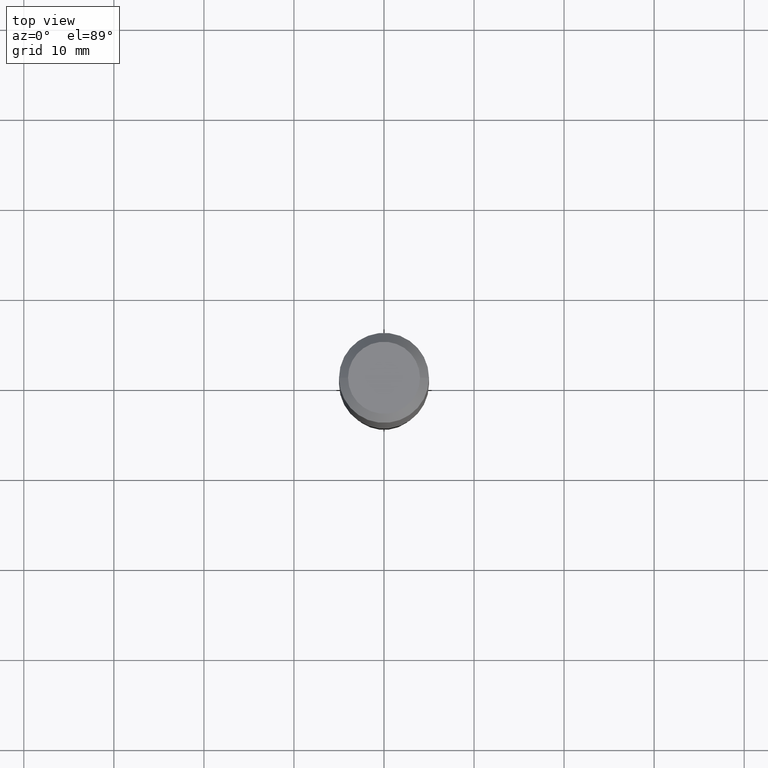
[diagram: clean part render]
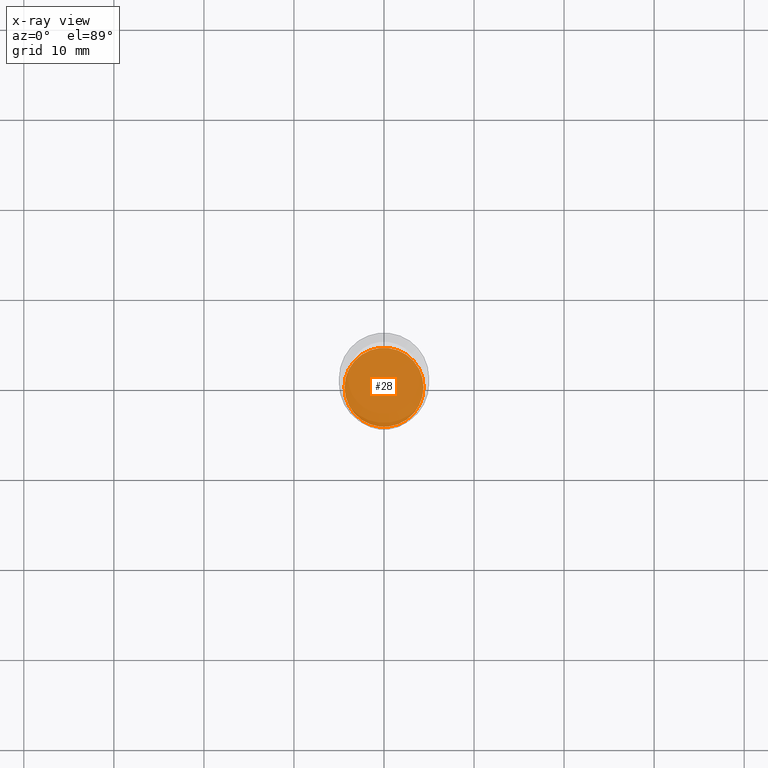
[diagram: x-ray — body ghosted, one internal face saturated and labeled with its STEP entity id]
A machine part, top view, then the same camera in x-ray: the body is ghosted and one INTERNAL B-rep face — a face not visible from any outside direction — is saturated and labeled: STEP entity #28.
In plain terms, the highlighted planar face has unit normal (-0, 0, 1).
Its self-contained STEP definition (entity closure, byte-faithful):
#28 = ADVANCED_FACE ( 'NONE', ( #101 ), #266, .F. ) ;
#57 = EDGE_CURVE ( 'NONE', #517, #366, #285, .T. ) ;
#93 = CARTESIAN_POINT ( 'NONE',  ( -0.1727499999999999869, -7.238825332298250975E-15, -2.425600000000000200 ) ) ;
#94 = EDGE_LOOP ( 'NONE', ( #356, #361 ) ) ;
#101 = FACE_OUTER_BOUND ( 'NONE', #94, .T. ) ;
#174 = DIRECTION ( 'NONE',  ( 1.000000000000000000, -6.982962677686261189E-15, 0.000000000000000000 ) ) ;
#179 = CARTESIAN_POINT ( 'NONE',  ( 5.931729136282667609E-29, -8.468937135497934168E-15, -2.425600000000000200 ) ) ;
#185 = EDGE_CURVE ( 'NONE', #366, #517, #382, .T. ) ;
#216 = CARTESIAN_POINT ( 'NONE',  ( 5.931729136282667609E-29, -8.468937135497934168E-15, -2.425600000000000200 ) ) ;
#240 = CARTESIAN_POINT ( 'NONE',  ( 0.1727499999999999869, -9.675243938068236521E-15, -2.425600000000000200 ) ) ;
#261 = AXIS2_PLACEMENT_3D ( 'NONE', #179, #499, #174 ) ;
#266 = PLANE ( 'NONE',  #437 ) ;
#284 = CARTESIAN_POINT ( 'NONE',  ( 5.931729136282667609E-29, -8.468937135497934168E-15, -2.425600000000000200 ) ) ;
#285 = CIRCLE ( 'NONE', #261, 0.1727499999999999869 ) ;
#356 = ORIENTED_EDGE ( 'NONE', *, *, #57, .F. ) ;
#361 = ORIENTED_EDGE ( 'NONE', *, *, #185, .F. ) ;
#364 = DIRECTION ( 'NONE',  ( 1.000000000000000000, -6.982962677686261189E-15, 0.000000000000000000 ) ) ;
#366 = VERTEX_POINT ( 'NONE', #93 ) ;
#378 = DIRECTION ( 'NONE',  ( -2.438088387897960049E-29, 3.491481338843145188E-15, 1.000000000000000000 ) ) ;
#382 = CIRCLE ( 'NONE', #487, 0.1727499999999999869 ) ;
#404 = DIRECTION ( 'NONE',  ( -2.445468806185136597E-29, 3.491481338843145583E-15, 1.000000000000000000 ) ) ;
#437 = AXIS2_PLACEMENT_3D ( 'NONE', #216, #378, #503 ) ;
#487 = AXIS2_PLACEMENT_3D ( 'NONE', #284, #404, #364 ) ;
#499 = DIRECTION ( 'NONE',  ( -2.445468806185136597E-29, 3.491481338843145583E-15, 1.000000000000000000 ) ) ;
#503 = DIRECTION ( 'NONE',  ( 1.000000000000000000, -6.982962677686265922E-15, 4.876176775795935793E-29 ) ) ;
#517 = VERTEX_POINT ( 'NONE', #240 ) ;